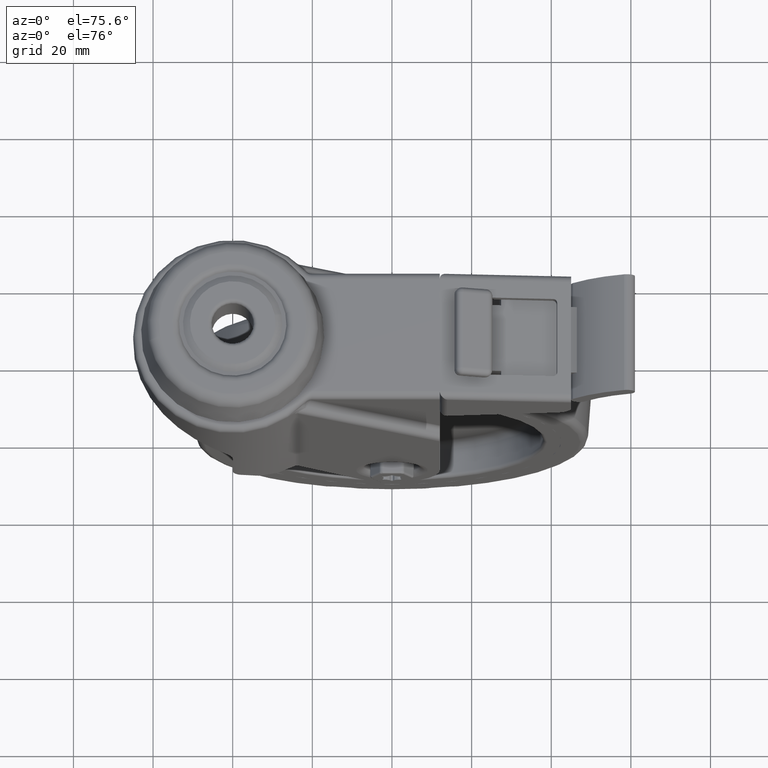
[diagram: clean part render]
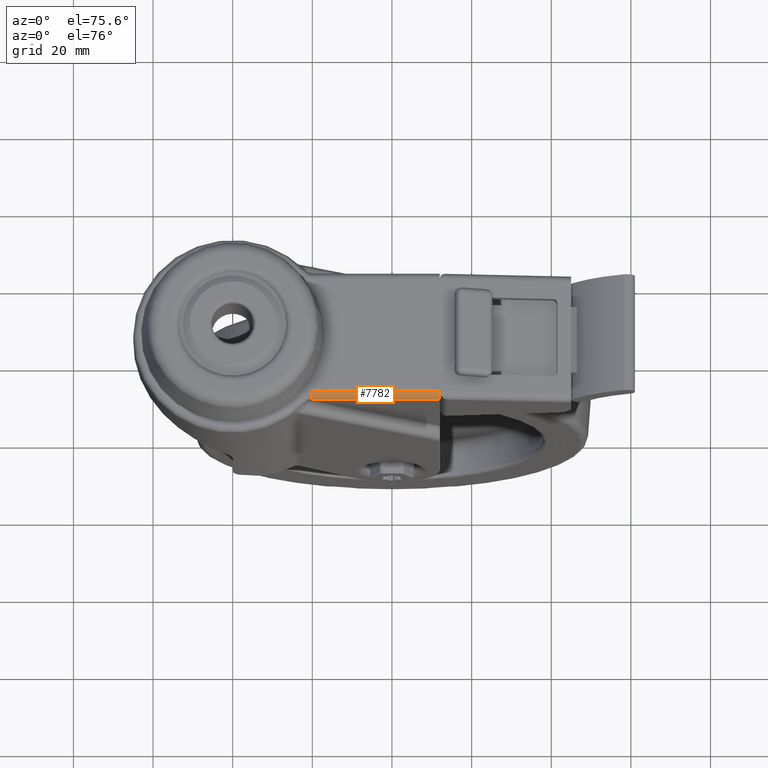
[diagram: same view with one face highlighted and labeled with its STEP entity id]
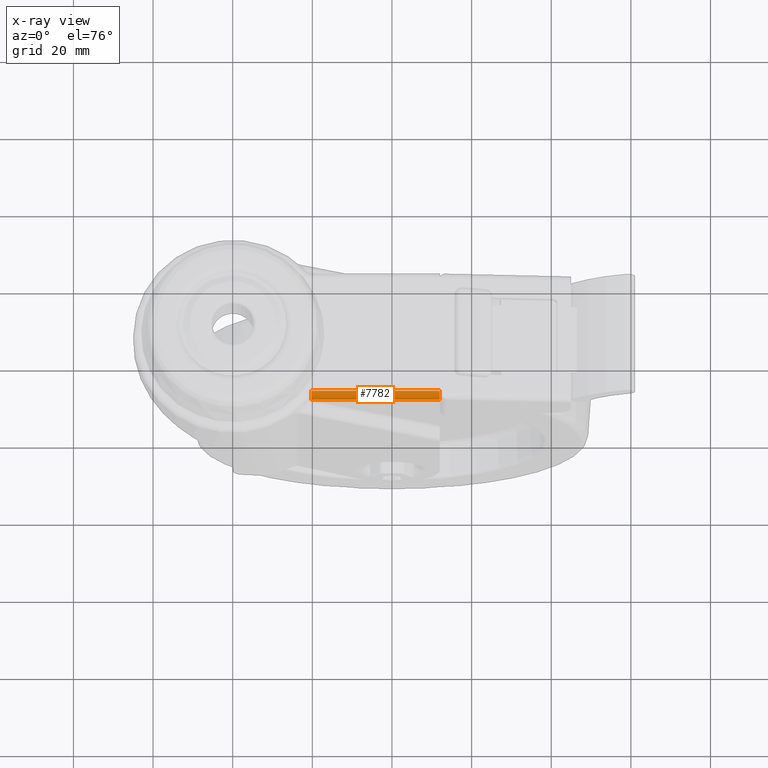
[diagram: x-ray of the same camera — body ghosted, the highlighted face saturated]
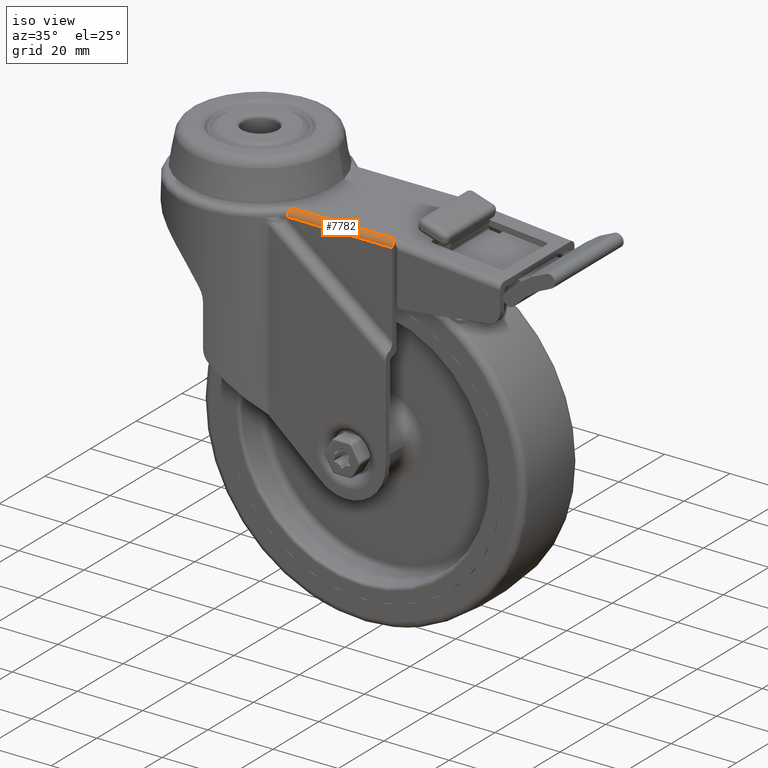
[diagram: same view with one face highlighted and labeled with its STEP entity id]
A machine part, auxiliary view. The second image highlights one B-rep face of the part: STEP entity #7782.
The next image is the same camera in x-ray: the body ghosted, the highlighted face saturated — about 0% of this face is hidden behind the body in this view.
A second angle (iso view) of the same face is appended — the face is thin or edge-on in the first view.
In plain terms, the highlighted cylindrical surface (edge-blend (fillet) strip) has radius 1.8 mm, axis along (-1, 0, 0).
Its self-contained STEP definition (entity closure, byte-faithful):
#605=CYLINDRICAL_SURFACE('',#8447,1.8);
#882=FACE_OUTER_BOUND('',#1365,.T.);
#1365=EDGE_LOOP('',(#5780,#5781,#5782,#5783));
#1943=LINE('',#12217,#2513);
#1944=LINE('',#12220,#2514);
#2513=VECTOR('',#9732,1000.);
#2514=VECTOR('',#9735,1000.);
#2985=CIRCLE('',#8448,1.8);
#2986=CIRCLE('',#8449,1.8);
#3506=VERTEX_POINT('',#12213);
#3507=VERTEX_POINT('',#12214);
#3508=VERTEX_POINT('',#12216);
#3509=VERTEX_POINT('',#12218);
#4345=EDGE_CURVE('',#3506,#3507,#2985,.T.);
#4346=EDGE_CURVE('',#3507,#3508,#1943,.T.);
#4347=EDGE_CURVE('',#3508,#3509,#2986,.T.);
#4348=EDGE_CURVE('',#3509,#3506,#1944,.T.);
#5780=ORIENTED_EDGE('',*,*,#4345,.T.);
#5781=ORIENTED_EDGE('',*,*,#4346,.T.);
#5782=ORIENTED_EDGE('',*,*,#4347,.T.);
#5783=ORIENTED_EDGE('',*,*,#4348,.T.);
#7782=ADVANCED_FACE('',(#882),#605,.T.);
#8447=AXIS2_PLACEMENT_3D('',#12212,#9728,#9729);
#8448=AXIS2_PLACEMENT_3D('',#12215,#9730,#9731);
#8449=AXIS2_PLACEMENT_3D('',#12219,#9733,#9734);
#9728=DIRECTION('center_axis',(-1.,4.19972369040072E-16,0.));
#9729=DIRECTION('ref_axis',(-2.96965310059214E-16,-0.707106781186547,0.707106781186547));
#9730=DIRECTION('center_axis',(-1.,4.25699012509646E-16,0.));
#9731=DIRECTION('ref_axis',(-3.01014658489988E-16,-0.707106781186547,0.707106781186547));
#9732=DIRECTION('',(-1.,4.19972369040072E-16,0.));
#9733=DIRECTION('center_axis',(1.,-4.19972369040072E-16,0.));
#9734=DIRECTION('ref_axis',(0.,0.,1.));
#9735=DIRECTION('',(1.,-4.19972369040072E-16,0.));
#12212=CARTESIAN_POINT('Origin',(17.7388685358427,-14.5,-14.3));
#12213=CARTESIAN_POINT('',(52.,-16.3,-14.3));
#12214=CARTESIAN_POINT('',(52.,-14.5,-12.5));
#12215=CARTESIAN_POINT('Origin',(52.,-14.5,-14.3));
#12216=CARTESIAN_POINT('',(19.764361866754,-14.5,-12.5));
#12217=CARTESIAN_POINT('',(17.7388685358427,-14.5,-12.5));
#12218=CARTESIAN_POINT('',(19.764361866754,-16.3,-14.3));
#12219=CARTESIAN_POINT('Origin',(19.764361866754,-14.5,-14.3));
#12220=CARTESIAN_POINT('',(17.7388685358427,-16.3,-14.3));